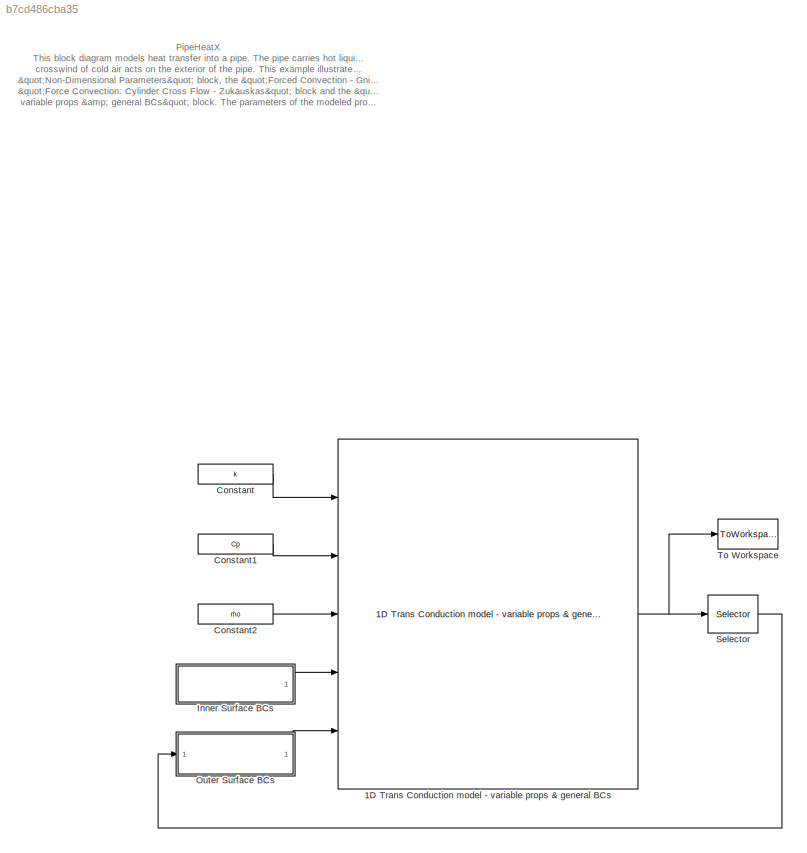
MODEL slx_b7cd486cba35
KIND model
CONFIG AbsTol = auto
CONFIG FixedStep = dt
CONFIG MaxStep = auto
CONFIG MinStep = auto
CONFIG RelTol = 1e-3
CONFIG SampleTimeConstraint = Unconstrained
CONFIG Solver = FixedStepDiscrete
CONFIG SolverMode = Auto
CONFIG SolverName = FixedStepDiscrete
CONFIG StartTime = 0.0
CONFIG StopTime = tsim
BLOCK [Reference] 1D Trans Conduction model - variable props & general BCs  REF=lib_Conduction_HeatX1DVarPropsAndGenBCs/1D Trans Conduction model - variable props & general BCs
  BN_M = double(gcb)
  Ports = [5, 1]
  SourceBlock = lib_Conduction_HeatX1DVarPropsAndGenBCs/1D Trans Conduction model - variable props & general BCs
  SourceType = TSAT: 1-D Trans Conduction Model - Variable Props + Generic BCs Block
  T0_M = To
  a_M = on
  condin_M = off
  condout_M = off
  convin_M = on
  convout_M = on
  dt_M = dt
  radin_M = off
  radout_M = off
  x_M = r
BLOCK [Constant] Constant
  Value = k
BLOCK [Constant] Constant1
  Value = Cp
BLOCK [Constant] Constant2
  Value = rho
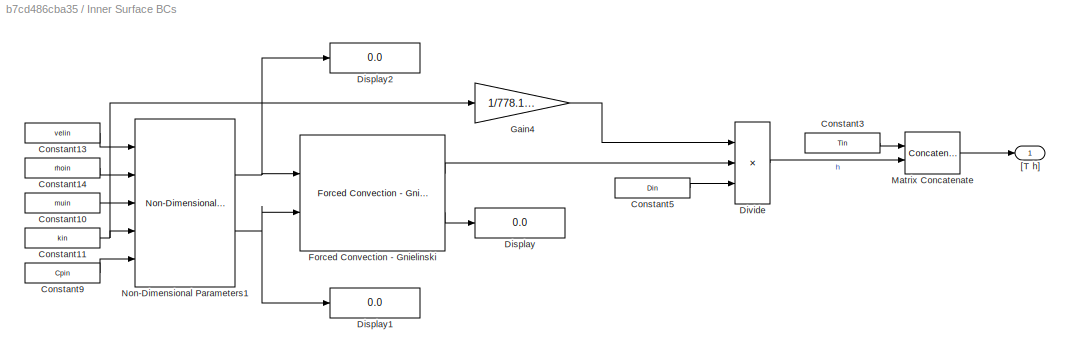
BLOCK [SubSystem] Inner Surface BCs
  Ports = [0, 1]
  RequestExecContextInheritance = off
BLOCK [Constant] Inner Surface BCs/Constant10
  Value = muin
BLOCK [Constant] Inner Surface BCs/Constant11
  Value = kin
BLOCK [Constant] Inner Surface BCs/Constant13
  Value = velin
BLOCK [Constant] Inner Surface BCs/Constant14
  Value = rhoin
BLOCK [Constant] Inner Surface BCs/Constant3
  Value = Tin
BLOCK [Constant] Inner Surface BCs/Constant5
  Value = Din
BLOCK [Constant] Inner Surface BCs/Constant9
  Value = Cpin
BLOCK [Display] Inner Surface BCs/Display
  Decimation = 1
  Ports = [1]
BLOCK [Display] Inner Surface BCs/Display1
  Decimation = 1
  Ports = [1]
BLOCK [Display] Inner Surface BCs/Display2
  Decimation = 1
  Ports = [1]
BLOCK [Product] Inner Surface BCs/Divide
  InputSameDT = off
  Inputs = **/
  OutDataTypeStr = Inherit: Inherit via internal rule
  Ports = [3, 1]
  RndMeth = Floor
  SaturateOnIntegerOverflow = off
BLOCK [Reference] Inner Surface BCs/Forced Convection - Gnielinski  REF=lib_Convection_Gnielinski/Forced Convection - Gnielinski
  Ports = [2, 2]
  SmoothOrRough_M = Smooth
  SourceBlock = lib_Convection_Gnielinski/Forced Convection - Gnielinski
  SourceType = TSAT: Gnielinski's Correlation
  eoD_M = [0.02 0.01]
BLOCK [Gain] Inner Surface BCs/Gain4
  Gain = 1/778.169
  OutDataTypeStr = Inherit: Inherit via internal rule
  ParamDataTypeStr = Inherit: Inherit via internal rule
  SaturateOnIntegerOverflow = off
BLOCK [Concatenate] Inner Surface BCs/Matrix Concatenate
  ConcatenateDimension = 2
  Ports = [2, 1]
BLOCK [Reference] Inner Surface BCs/Non-Dimensional Parameters1  REF=lib_Convection_NonDimParms/Non-Dimensional Parameters
  A_M = 1
  Bi_M = off
  Ec_M = off
  Fo_M = off
  Gr_M = off
  L_M = Din
  M_M = off
  Nu_M = off
  Pe_M = off
  Ports = [5, 2]
  Pr_M = on
  R_M = 1716
  Ra_M = off
  Re_M = on
  SourceBlock = lib_Convection_NonDimParms/Non-Dimensional Parameters
  SourceType = TSAT: Non-Dimensional Parameters Block
  St_M = off
  g_M = 32.174
  jH_M = off
  mdot_A_or_rhov_M = off
  perfGas_M = off
  t_M = 1
BLOCK [Outport] Inner Surface BCs/[T h]
  IconDisplay = Port number
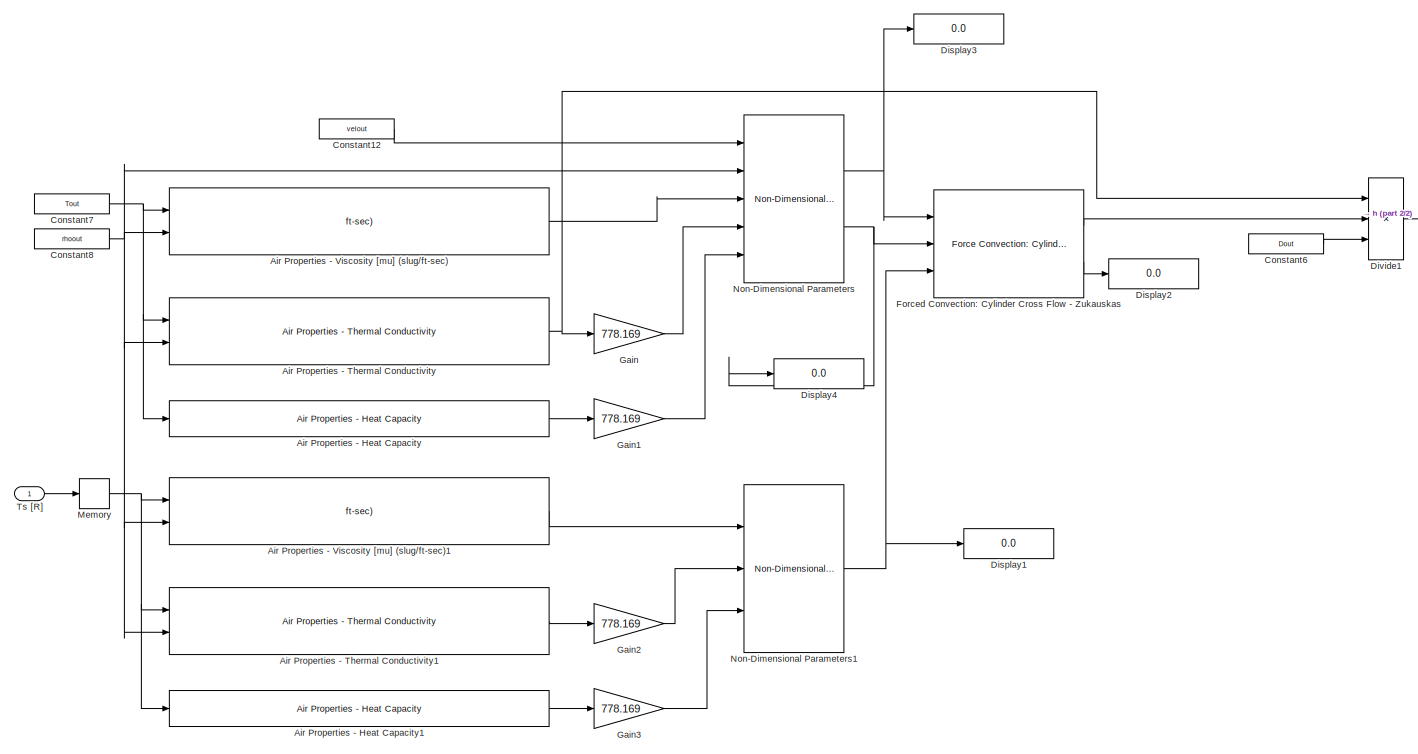
[diagram: Outer Surface BCs - part 1/2, most of the canvas]
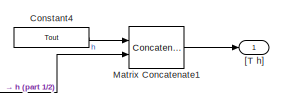
[diagram: Outer Surface BCs - part 2/2, top right region]
BLOCK [SubSystem] Outer Surface BCs
  Ports = [1, 1]
  RequestExecContextInheritance = off
BLOCK [Reference] Outer Surface BCs/Air Properties - Heat Capacity  REF=lib_AirProps_HeatCapacity/Air Properties - Heat Capacity
  BN_M = double(gcb)
  Ports = [1, 1]
  SourceBlock = lib_AirProps_HeatCapacity/Air Properties - Heat Capacity
  SourceType = TSAT: Air Properties - Heat Capacity Block
BLOCK [Reference] Outer Surface BCs/Air Properties - Heat Capacity1  REF=lib_AirProps_HeatCapacity/Air Properties - Heat Capacity
  BN_M = double(gcb)
  Ports = [1, 1]
  SourceBlock = lib_AirProps_HeatCapacity/Air Properties - Heat Capacity
  SourceType = TSAT: Air Properties - Heat Capacity Block
BLOCK [Reference] Outer Surface BCs/Air Properties - Thermal Conductivity  REF=lib_AirProps_ThermCond/Air Properties - Thermal Conductivity
  BN_M = double(gcb)
  Ports = [2, 1]
  SourceBlock = lib_AirProps_ThermCond/Air Properties - Thermal Conductivity
  SourceType = TSAT: Air Properties - Thermal Conductivity Block
BLOCK [Reference] Outer Surface BCs/Air Properties - Thermal Conductivity1  REF=lib_AirProps_ThermCond/Air Properties - Thermal Conductivity
  BN_M = double(gcb)
  Ports = [2, 1]
  SourceBlock = lib_AirProps_ThermCond/Air Properties - Thermal Conductivity
  SourceType = TSAT: Air Properties - Thermal Conductivity Block
BLOCK [Reference] Outer Surface BCs/Air Properties - Viscosity [mu] (slug//ft-sec)  REF=lib_AirProps_Viscosity/Air Properties - Viscosity [mu] (slug//ft-sec)
  BN_M = double(gcb)
  Ports = [2, 1]
  SourceBlock = lib_AirProps_Viscosity/Air Properties - Viscosity [mu] (slug//ft-sec)
  SourceType = TSAT: Air Properties - Viscosity Block
BLOCK [Reference] Outer Surface BCs/Air Properties - Viscosity [mu] (slug//ft-sec)1  REF=lib_AirProps_Viscosity/Air Properties - Viscosity [mu] (slug//ft-sec)
  BN_M = double(gcb)
  Ports = [2, 1]
  SourceBlock = lib_AirProps_Viscosity/Air Properties - Viscosity [mu] (slug//ft-sec)
  SourceType = TSAT: Air Properties - Viscosity Block
BLOCK [Constant] Outer Surface BCs/Constant12
  Value = velout
BLOCK [Constant] Outer Surface BCs/Constant4
  Value = Tout
BLOCK [Constant] Outer Surface BCs/Constant6
  Value = Dout
BLOCK [Constant] Outer Surface BCs/Constant7
  Value = Tout
BLOCK [Constant] Outer Surface BCs/Constant8
  Value = rhoout
BLOCK [Display] Outer Surface BCs/Display1
  Decimation = 1
  Ports = [1]
BLOCK [Display] Outer Surface BCs/Display2
  Decimation = 1
  Ports = [1]
BLOCK [Display] Outer Surface BCs/Display3
  Decimation = 1
  Ports = [1]
BLOCK [Display] Outer Surface BCs/Display4
  Decimation = 1
  Ports = [1]
BLOCK [Product] Outer Surface BCs/Divide1
  InputSameDT = off
  Inputs = **/
  OutDataTypeStr = Inherit: Inherit via internal rule
  Ports = [3, 1]
  RndMeth = Floor
  SaturateOnIntegerOverflow = off
BLOCK [Reference] Outer Surface BCs/Forced Convection: Cylinder Cross Flow - Zukauskas  REF=lib_Convection_CylCrossFlowZukauskas/Force Convection: Cylinder Cross Flow 
- Zukauskas
  Ports = [3, 2]
  SourceBlock = lib_Convection_CylCrossFlowZukauskas/Force Convection: Cylinder Cross Flow \n- Zukauskas
  SourceType = TSAT: Cylinder Cross Flow - Zukauskas
BLOCK [Gain] Outer Surface BCs/Gain
  Gain = 778.169
  OutDataTypeStr = Inherit: Inherit via internal rule
  ParamDataTypeStr = Inherit: Inherit via internal rule
  SaturateOnIntegerOverflow = off
BLOCK [Gain] Outer Surface BCs/Gain1
  Gain = 778.169
  OutDataTypeStr = Inherit: Inherit via internal rule
  ParamDataTypeStr = Inherit: Inherit via internal rule
  SaturateOnIntegerOverflow = off
BLOCK [Gain] Outer Surface BCs/Gain2
  Gain = 778.169
  OutDataTypeStr = Inherit: Inherit via internal rule
  ParamDataTypeStr = Inherit: Inherit via internal rule
  SaturateOnIntegerOverflow = off
BLOCK [Gain] Outer Surface BCs/Gain3
  Gain = 778.169
  OutDataTypeStr = Inherit: Inherit via internal rule
  ParamDataTypeStr = Inherit: Inherit via internal rule
  SaturateOnIntegerOverflow = off
BLOCK [Concatenate] Outer Surface BCs/Matrix Concatenate1
  ConcatenateDimension = 2
  Ports = [2, 1]
BLOCK [Memory] Outer Surface BCs/Memory
  X0 = To(length(r))
BLOCK [Reference] Outer Surface BCs/Non-Dimensional Parameters  REF=lib_Convection_NonDimParms/Non-Dimensional Parameters
  A_M = 1
  Bi_M = off
  Ec_M = off
  Fo_M = off
  Gr_M = off
  L_M = Dout
  M_M = off
  Nu_M = off
  Pe_M = off
  Ports = [5, 2]
  Pr_M = on
  R_M = 1716
  Ra_M = off
  Re_M = on
  SourceBlock = lib_Convection_NonDimParms/Non-Dimensional Parameters
  SourceType = TSAT: Non-Dimensional Parameters Block
  St_M = off
  g_M = 32.174
  jH_M = off
  mdot_A_or_rhov_M = off
  perfGas_M = on
  t_M = 1
BLOCK [Reference] Outer Surface BCs/Non-Dimensional Parameters1  REF=lib_Convection_NonDimParms/Non-Dimensional Parameters
  A_M = 1
  Bi_M = off
  Ec_M = off
  Fo_M = off
  Gr_M = off
  L_M = 1
  M_M = off
  Nu_M = off
  Pe_M = off
  Ports = [3, 1]
  Pr_M = on
  R_M = 1716
  Ra_M = off
  Re_M = off
  SourceBlock = lib_Convection_NonDimParms/Non-Dimensional Parameters
  SourceType = TSAT: Non-Dimensional Parameters Block
  St_M = off
  g_M = 32.174
  jH_M = off
  mdot_A_or_rhov_M = off
  perfGas_M = on
  t_M = 1
BLOCK [Inport] Outer Surface BCs/Ts [R]
  IconDisplay = Port number
BLOCK [Outport] Outer Surface BCs/[T h]
  IconDisplay = Port number
BLOCK [Selector] Selector
  Indices = length(r)
  InputPortWidth = length(r)
  Ports = [1, 1]
BLOCK [ToWorkspace] To Workspace
  FixptAsFi = on
  MaxDataPoints = inf
  Ports = [1]
  SampleTime = -1
  Save2DSignal = 3-D array (concatenate along third dimension)
  SaveFormat = Timeseries
  VariableName = T
ANNOTATION (root): PipeHeatX This block diagram models heat transfer into a pipe. The pipe carries hot liquid water and a constant crosswind of cold air acts on the exterior of the pipe. This example illustrate usage of the "Non-Dimensional Parameters" block, the "Forced Convection - Gnielinski" block, the "Force Convection: Cylinder Cross Flow - Zukauskas" block and the "1D Trans Conduction model - variable props &...<+436ch>
NET 1D Trans Conduction model - variable props & general BCs:1 -> Selector:1, To Workspace:1
LINE Constant1:1 -> 1D Trans Conduction model - variable props & general BCs:2
LINE Constant2:1 -> 1D Trans Conduction model - variable props & general BCs:3
LINE Constant:1 -> 1D Trans Conduction model - variable props & general BCs:1
LINE Inner Surface BCs/Constant10:1 -> Inner Surface BCs/Non-Dimensional Parameters1:3
NET Inner Surface BCs/Constant11:1 -> Inner Surface BCs/Gain4:1, Inner Surface BCs/Non-Dimensional Parameters1:4
LINE Inner Surface BCs/Constant13:1 -> Inner Surface BCs/Non-Dimensional Parameters1:1
LINE Inner Surface BCs/Constant14:1 -> Inner Surface BCs/Non-Dimensional Parameters1:2
LINE Inner Surface BCs/Constant3:1 -> Inner Surface BCs/Matrix Concatenate:1
LINE Inner Surface BCs/Constant5:1 -> Inner Surface BCs/Divide:3
LINE Inner Surface BCs/Constant9:1 -> Inner Surface BCs/Non-Dimensional Parameters1:5
LINE Inner Surface BCs/Divide:1 -> Inner Surface BCs/Matrix Concatenate:2
LINE Inner Surface BCs/Forced Convection - Gnielinski:1 -> Inner Surface BCs/Divide:2
LINE Inner Surface BCs/Forced Convection - Gnielinski:2 -> Inner Surface BCs/Display:1
LINE Inner Surface BCs/Gain4:1 -> Inner Surface BCs/Divide:1
LINE Inner Surface BCs/Matrix Concatenate:1 -> Inner Surface BCs/[T h]:1
NET Inner Surface BCs/Non-Dimensional Parameters1:1 -> Inner Surface BCs/Display2:1, Inner Surface BCs/Forced Convection - Gnielinski:1
NET Inner Surface BCs/Non-Dimensional Parameters1:2 -> Inner Surface BCs/Display1:1, Inner Surface BCs/Forced Convection - Gnielinski:2
LINE Inner Surface BCs:1 -> 1D Trans Conduction model - variable props & general BCs:4
LINE Outer Surface BCs/Air Properties - Heat Capacity1:1 -> Outer Surface BCs/Gain3:1
LINE Outer Surface BCs/Air Properties - Heat Capacity:1 -> Outer Surface BCs/Gain1:1
LINE Outer Surface BCs/Air Properties - Thermal Conductivity1:1 -> Outer Surface BCs/Gain2:1
NET Outer Surface BCs/Air Properties - Thermal Conductivity:1 -> Outer Surface BCs/Divide1:1, Outer Surface BCs/Gain:1
LINE Outer Surface BCs/Air Properties - Viscosity [mu] (slug//ft-sec)1:1 -> Outer Surface BCs/Non-Dimensional Parameters1:1
LINE Outer Surface BCs/Air Properties - Viscosity [mu] (slug//ft-sec):1 -> Outer Surface BCs/Non-Dimensional Parameters:3
LINE Outer Surface BCs/Constant12:1 -> Outer Surface BCs/Non-Dimensional Parameters:1
LINE Outer Surface BCs/Constant4:1 -> Outer Surface BCs/Matrix Concatenate1:1
LINE Outer Surface BCs/Constant6:1 -> Outer Surface BCs/Divide1:3
NET Outer Surface BCs/Constant7:1 -> Outer Surface BCs/Air Properties - Heat Capacity:1, Outer Surface BCs/Air Properties - Thermal Conductivity:1, Outer Surface BCs/Air Properties - Viscosity [mu] (slug//ft-sec):1
NET Outer Surface BCs/Constant8:1 -> Outer Surface BCs/Air Properties - Thermal Conductivity1:2, Outer Surface BCs/Air Properties - Thermal Conductivity:2, Outer Surface BCs/Air Properties - Viscosity [mu] (slug//ft-sec)1:2, Outer Surface BCs/Air Properties - Viscosity [mu] (slug//ft-sec):2, Outer Surface BCs/Non-Dimensional Parameters:2
LINE Outer Surface BCs/Divide1:1 -> Outer Surface BCs/Matrix Concatenate1:2
LINE Outer Surface BCs/Forced Convection: Cylinder Cross Flow - Zukauskas:1 -> Outer Surface BCs/Divide1:2
LINE Outer Surface BCs/Forced Convection: Cylinder Cross Flow - Zukauskas:2 -> Outer Surface BCs/Display2:1
LINE Outer Surface BCs/Gain1:1 -> Outer Surface BCs/Non-Dimensional Parameters:5
LINE Outer Surface BCs/Gain2:1 -> Outer Surface BCs/Non-Dimensional Parameters1:2
LINE Outer Surface BCs/Gain3:1 -> Outer Surface BCs/Non-Dimensional Parameters1:3
LINE Outer Surface BCs/Gain:1 -> Outer Surface BCs/Non-Dimensional Parameters:4
LINE Outer Surface BCs/Matrix Concatenate1:1 -> Outer Surface BCs/[T h]:1
NET Outer Surface BCs/Memory:1 -> Outer Surface BCs/Air Properties - Heat Capacity1:1, Outer Surface BCs/Air Properties - Thermal Conductivity1:1, Outer Surface BCs/Air Properties - Viscosity [mu] (slug//ft-sec)1:1
NET Outer Surface BCs/Non-Dimensional Parameters1:1 -> Outer Surface BCs/Display1:1, Outer Surface BCs/Forced Convection: Cylinder Cross Flow - Zukauskas:3
NET Outer Surface BCs/Non-Dimensional Parameters:1 -> Outer Surface BCs/Display3:1, Outer Surface BCs/Forced Convection: Cylinder Cross Flow - Zukauskas:1
NET Outer Surface BCs/Non-Dimensional Parameters:2 -> Outer Surface BCs/Display4:1, Outer Surface BCs/Forced Convection: Cylinder Cross Flow - Zukauskas:2
LINE Outer Surface BCs/Ts [R]:1 -> Outer Surface BCs/Memory:1
LINE Outer Surface BCs:1 -> 1D Trans Conduction model - variable props & general BCs:5
LINE Selector:1 -> Outer Surface BCs:1
note: NET lines group one-source signal fan-out (src -> all destinations, sorted); 1:1 wires keep LINE
